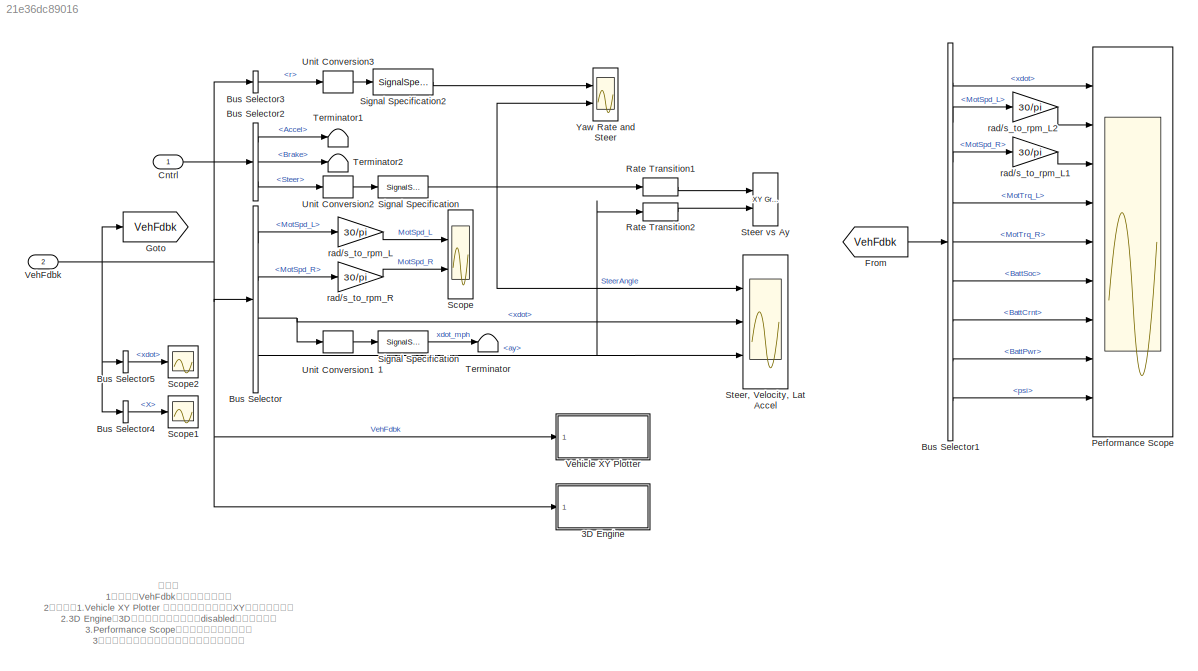
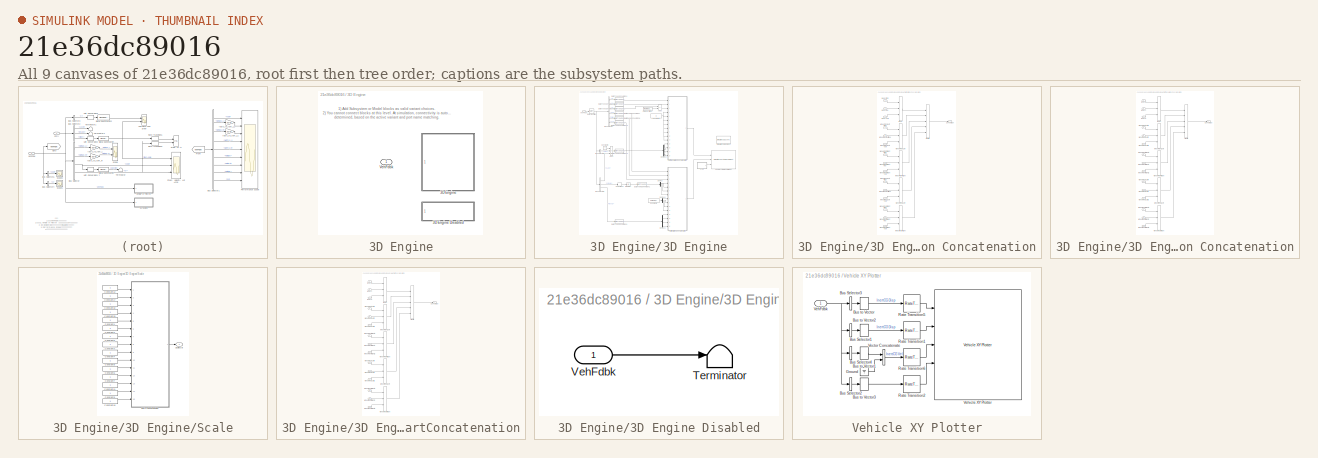
[diagram: thumbnail index - all 9 canvases of the model, root first then tree order]
MODEL slx_21e36dc89016
KIND model
CONFIG AbsTol = auto
CONFIG EnableMultiTasking = off
CONFIG FixedStep = auto
CONFIG MaxStep = auto
CONFIG MinStep = auto
CONFIG RelTol = 1e-3
CONFIG SampleTimeConstraint = Unconstrained
CONFIG Solver = VariableStepAuto
CONFIG SolverName = VariableStepAuto
CONFIG StartTime = 0.0
CONFIG StopTime = 10.0
WORKSPACE source: mxarray member
WORKSPACE VEH: object (value not decoded)
BLOCK [SubSystem] 3D Engine
  AttributesFormatString = %<engine3D>
  LabelModeActiveChoice = 0
  Ports = [1]
  RequestExecContextInheritance = off
  Variant = on
  VariantControlMode = Label
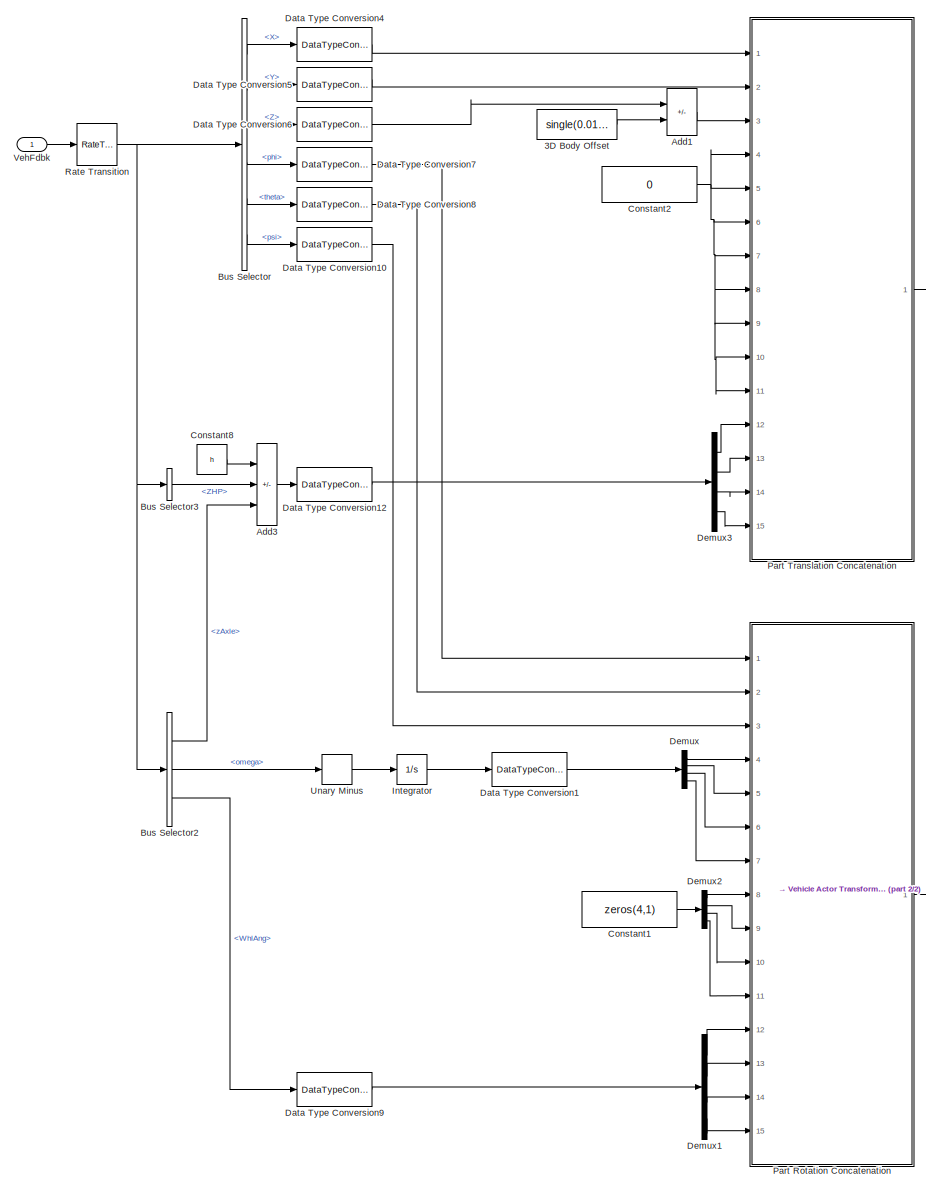
[diagram: 3D Engine/3D Engine - part 1/2, center side, full height]
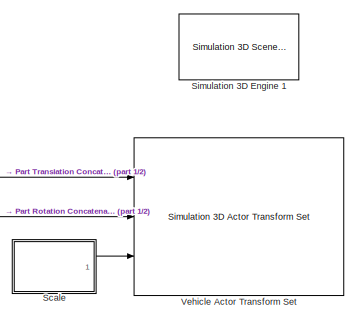
[diagram: 3D Engine/3D Engine - part 2/2, middle right region]
BLOCK [SubSystem] 3D Engine/3D Engine
  Ports = [1]
  RequestExecContextInheritance = off
  VariantControl = 1
BLOCK [SubSystem] 3D Engine/3D Engine Disabled
  Ports = [1]
  RequestExecContextInheritance = off
  VariantControl = 0
BLOCK [Terminator] 3D Engine/3D Engine Disabled/Terminator
BLOCK [Inport] 3D Engine/3D Engine Disabled/VehFdbk
BLOCK [Constant] 3D Engine/3D Engine/3D Body Offset
  OutDataTypeStr = single
  Value = single(0.0112)
BLOCK [Sum] 3D Engine/3D Engine/Add1
  IconShape = rectangular
  Inputs = -+
  Ports = [2, 1]
BLOCK [Sum] 3D Engine/3D Engine/Add3
  IconShape = rectangular
  Inputs = -+-
  Ports = [3, 1]
BLOCK [BusSelector] 3D Engine/3D Engine/Bus Selector
  OutputSignals = Body.X,Body.Y,Body.Z,Body.phi,Body.theta,Body.psi
  Ports = [1, 6]
BLOCK [BusSelector] 3D Engine/3D Engine/Bus Selector2
  OutputSignals = Wheels.zAxle,Wheels.omega,Driveline.WhlAng
  Ports = [1, 3]
BLOCK [BusSelector] 3D Engine/3D Engine/Bus Selector3
  OutputSignals = Body.ZHP
  Ports = [1, 1]
BLOCK [Constant] 3D Engine/3D Engine/Constant1
  OutDataTypeStr = single
  Value = zeros(4,1)
BLOCK [Constant] 3D Engine/3D Engine/Constant2
  OutDataTypeStr = single
  Value = 0
BLOCK [Constant] 3D Engine/3D Engine/Constant8
  Value = h
BLOCK [DataTypeConversion] 3D Engine/3D Engine/Data Type Conversion1
  OutDataTypeStr = single
  RndMeth = Floor
  SaturateOnIntegerOverflow = off
BLOCK [DataTypeConversion] 3D Engine/3D Engine/Data Type Conversion10
  OutDataTypeStr = single
  RndMeth = Floor
  SaturateOnIntegerOverflow = off
BLOCK [DataTypeConversion] 3D Engine/3D Engine/Data Type Conversion12
  OutDataTypeStr = single
  RndMeth = Floor
  SaturateOnIntegerOverflow = off
BLOCK [DataTypeConversion] 3D Engine/3D Engine/Data Type Conversion4
  OutDataTypeStr = single
  RndMeth = Floor
  SaturateOnIntegerOverflow = off
BLOCK [DataTypeConversion] 3D Engine/3D Engine/Data Type Conversion5
  OutDataTypeStr = single
  RndMeth = Floor
  SaturateOnIntegerOverflow = off
BLOCK [DataTypeConversion] 3D Engine/3D Engine/Data Type Conversion6
  OutDataTypeStr = single
  RndMeth = Floor
  SaturateOnIntegerOverflow = off
BLOCK [DataTypeConversion] 3D Engine/3D Engine/Data Type Conversion7
  OutDataTypeStr = single
  RndMeth = Floor
  SaturateOnIntegerOverflow = off
BLOCK [DataTypeConversion] 3D Engine/3D Engine/Data Type Conversion8
  OutDataTypeStr = single
  RndMeth = Floor
  SaturateOnIntegerOverflow = off
BLOCK [DataTypeConversion] 3D Engine/3D Engine/Data Type Conversion9
  OutDataTypeStr = single
  RndMeth = Floor
  SaturateOnIntegerOverflow = off
BLOCK [Demux] 3D Engine/3D Engine/Demux
  Ports = [1, 4]
BLOCK [Demux] 3D Engine/3D Engine/Demux1
  Ports = [1, 4]
BLOCK [Demux] 3D Engine/3D Engine/Demux2
  Ports = [1, 4]
BLOCK [Demux] 3D Engine/3D Engine/Demux3
  Ports = [1, 4]
BLOCK [Integrator] 3D Engine/3D Engine/Integrator
  Ports = [1, 1]
  WrapState = on
  WrappedStateLowerValue = 0
  WrappedStateUpperValue = 2*pi
  ZeroCross = off
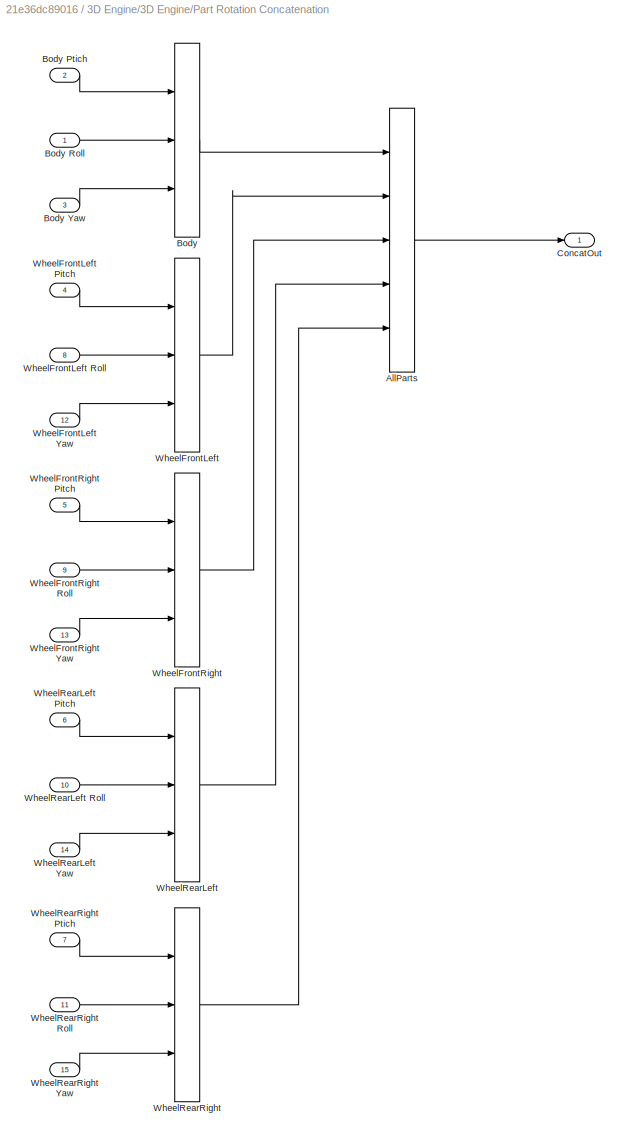
BLOCK [SubSystem] 3D Engine/3D Engine/Part Rotation Concatenation
  Ports = [15, 1]
  RequestExecContextInheritance = off
BLOCK [Concatenate] 3D Engine/3D Engine/Part Rotation Concatenation/AllParts
  Mode = Multidimensional array
  NumInputs = 5
  Ports = [5, 1]
BLOCK [Concatenate] 3D Engine/3D Engine/Part Rotation Concatenation/Body
  ConcatenateDimension = 2
  Mode = Multidimensional array
  NumInputs = 3
  Ports = [3, 1]
BLOCK [Inport] 3D Engine/3D Engine/Part Rotation Concatenation/Body Ptich
  Port = 2
BLOCK [Inport] 3D Engine/3D Engine/Part Rotation Concatenation/Body Roll
BLOCK [Inport] 3D Engine/3D Engine/Part Rotation Concatenation/Body Yaw
  Port = 3
BLOCK [Outport] 3D Engine/3D Engine/Part Rotation Concatenation/ConcatOut
  VectorParamsAs1DForOutWhenUnconnected = off
BLOCK [Concatenate] 3D Engine/3D Engine/Part Rotation Concatenation/WheelFrontLeft
  ConcatenateDimension = 2
  Mode = Multidimensional array
  NumInputs = 3
  Ports = [3, 1]
BLOCK [Inport] 3D Engine/3D Engine/Part Rotation Concatenation/WheelFrontLeft Pitch
  Port = 4
BLOCK [Inport] 3D Engine/3D Engine/Part Rotation Concatenation/WheelFrontLeft Roll
  Port = 8
BLOCK [Inport] 3D Engine/3D Engine/Part Rotation Concatenation/WheelFrontLeft Yaw
  Port = 12
BLOCK [Concatenate] 3D Engine/3D Engine/Part Rotation Concatenation/WheelFrontRight
  ConcatenateDimension = 2
  Mode = Multidimensional array
  NumInputs = 3
  Ports = [3, 1]
BLOCK [Inport] 3D Engine/3D Engine/Part Rotation Concatenation/WheelFrontRight Pitch
  Port = 5
BLOCK [Inport] 3D Engine/3D Engine/Part Rotation Concatenation/WheelFrontRight Roll
  Port = 9
BLOCK [Inport] 3D Engine/3D Engine/Part Rotation Concatenation/WheelFrontRight Yaw
  Port = 13
BLOCK [Concatenate] 3D Engine/3D Engine/Part Rotation Concatenation/WheelRearLeft
  ConcatenateDimension = 2
  Mode = Multidimensional array
  NumInputs = 3
  Ports = [3, 1]
BLOCK [Inport] 3D Engine/3D Engine/Part Rotation Concatenation/WheelRearLeft Pitch
  Port = 6
BLOCK [Inport] 3D Engine/3D Engine/Part Rotation Concatenation/WheelRearLeft Roll
  Port = 10
BLOCK [Inport] 3D Engine/3D Engine/Part Rotation Concatenation/WheelRearLeft Yaw
  Port = 14
BLOCK [Concatenate] 3D Engine/3D Engine/Part Rotation Concatenation/WheelRearRight
  ConcatenateDimension = 2
  Mode = Multidimensional array
  NumInputs = 3
  Ports = [3, 1]
BLOCK [Inport] 3D Engine/3D Engine/Part Rotation Concatenation/WheelRearRight Ptich
  Port = 7
BLOCK [Inport] 3D Engine/3D Engine/Part Rotation Concatenation/WheelRearRight Roll
  Port = 11
BLOCK [Inport] 3D Engine/3D Engine/Part Rotation Concatenation/WheelRearRight Yaw
  Port = 15
BLOCK [SubSystem] 3D Engine/3D Engine/Part Translation Concatenation
  Ports = [15, 1]
  RequestExecContextInheritance = off
BLOCK [Concatenate] 3D Engine/3D Engine/Part Translation Concatenation/AllParts
  Mode = Multidimensional array
  NumInputs = 5
  Ports = [5, 1]
BLOCK [Concatenate] 3D Engine/3D Engine/Part Translation Concatenation/Body
  ConcatenateDimension = 2
  Mode = Multidimensional array
  NumInputs = 3
  Ports = [3, 1]
BLOCK [Inport] 3D Engine/3D Engine/Part Translation Concatenation/BodyX
BLOCK [Inport] 3D Engine/3D Engine/Part Translation Concatenation/BodyY
  Port = 2
BLOCK [Inport] 3D Engine/3D Engine/Part Translation Concatenation/BodyZ
  Port = 3
BLOCK [Outport] 3D Engine/3D Engine/Part Translation Concatenation/ConcatOut
  VectorParamsAs1DForOutWhenUnconnected = off
BLOCK [Concatenate] 3D Engine/3D Engine/Part Translation Concatenation/WheelFrontLeft
  ConcatenateDimension = 2
  Mode = Multidimensional array
  NumInputs = 3
  Ports = [3, 1]
BLOCK [Inport] 3D Engine/3D Engine/Part Translation Concatenation/WheelFrontLeftX
  Port = 4
BLOCK [Inport] 3D Engine/3D Engine/Part Translation Concatenation/WheelFrontLeftY
  Port = 8
BLOCK [Inport] 3D Engine/3D Engine/Part Translation Concatenation/WheelFrontLeftZ
  Port = 12
BLOCK [Concatenate] 3D Engine/3D Engine/Part Translation Concatenation/WheelFrontRight
  ConcatenateDimension = 2
  Mode = Multidimensional array
  NumInputs = 3
  Ports = [3, 1]
BLOCK [Inport] 3D Engine/3D Engine/Part Translation Concatenation/WheelFrontRightX
  Port = 5
BLOCK [Inport] 3D Engine/3D Engine/Part Translation Concatenation/WheelFrontRightY
  Port = 9
BLOCK [Inport] 3D Engine/3D Engine/Part Translation Concatenation/WheelFrontRightZ
  Port = 13
BLOCK [Concatenate] 3D Engine/3D Engine/Part Translation Concatenation/WheelRearLeft
  ConcatenateDimension = 2
  Mode = Multidimensional array
  NumInputs = 3
  Ports = [3, 1]
BLOCK [Inport] 3D Engine/3D Engine/Part Translation Concatenation/WheelRearLeftX
  Port = 6
BLOCK [Inport] 3D Engine/3D Engine/Part Translation Concatenation/WheelRearLeftY
  Port = 10
BLOCK [Inport] 3D Engine/3D Engine/Part Translation Concatenation/WheelRearLeftZ
  Port = 14
BLOCK [Concatenate] 3D Engine/3D Engine/Part Translation Concatenation/WheelRearRight
  ConcatenateDimension = 2
  Mode = Multidimensional array
  NumInputs = 3
  Ports = [3, 1]
BLOCK [Inport] 3D Engine/3D Engine/Part Translation Concatenation/WheelRearRightX
  Port = 7
BLOCK [Inport] 3D Engine/3D Engine/Part Translation Concatenation/WheelRearRightY
  Port = 11
BLOCK [Inport] 3D Engine/3D Engine/Part Translation Concatenation/WheelRearRightZ
  Port = 15
BLOCK [RateTransition] 3D Engine/3D Engine/Rate Transition
  OutPortSampleTime = dt3D
BLOCK [SubSystem] 3D Engine/3D Engine/Scale
  Ports = [0, 1]
  RequestExecContextInheritance = off
BLOCK [Constant] 3D Engine/3D Engine/Scale/Constant1
  OutDataTypeStr = single
BLOCK [Constant] 3D Engine/3D Engine/Scale/Constant10
  OutDataTypeStr = single
BLOCK [Constant] 3D Engine/3D Engine/Scale/Constant11
  OutDataTypeStr = single
BLOCK [Constant] 3D Engine/3D Engine/Scale/Constant12
  OutDataTypeStr = single
BLOCK [Constant] 3D Engine/3D Engine/Scale/Constant17
  OutDataTypeStr = single
BLOCK [Constant] 3D Engine/3D Engine/Scale/Constant2
  OutDataTypeStr = single
BLOCK [Constant] 3D Engine/3D Engine/Scale/Constant3
  OutDataTypeStr = single
BLOCK [Constant] 3D Engine/3D Engine/Scale/Constant32
  OutDataTypeStr = single
BLOCK [Constant] 3D Engine/3D Engine/Scale/Constant33
  OutDataTypeStr = single
BLOCK [Constant] 3D Engine/3D Engine/Scale/Constant4
  OutDataTypeStr = single
BLOCK [Constant] 3D Engine/3D Engine/Scale/Constant5
  OutDataTypeStr = single
BLOCK [Constant] 3D Engine/3D Engine/Scale/Constant6
  OutDataTypeStr = single
BLOCK [Constant] 3D Engine/3D Engine/Scale/Constant7
  OutDataTypeStr = single
BLOCK [Constant] 3D Engine/3D Engine/Scale/Constant8
  OutDataTypeStr = single
BLOCK [Constant] 3D Engine/3D Engine/Scale/Constant9
  OutDataTypeStr = single
BLOCK [SubSystem] 3D Engine/3D Engine/Scale/PartConcatenation
  Ports = [15, 1]
  RequestExecContextInheritance = off
BLOCK [Concatenate] 3D Engine/3D Engine/Scale/PartConcatenation/AllParts
  Mode = Multidimensional array
  NumInputs = 5
  Ports = [5, 1]
BLOCK [Concatenate] 3D Engine/3D Engine/Scale/PartConcatenation/Body
  ConcatenateDimension = 2
  Mode = Multidimensional array
  NumInputs = 3
  Ports = [3, 1]
BLOCK [Inport] 3D Engine/3D Engine/Scale/PartConcatenation/BodyX
BLOCK [Inport] 3D Engine/3D Engine/Scale/PartConcatenation/BodyY
  Port = 2
BLOCK [Inport] 3D Engine/3D Engine/Scale/PartConcatenation/BodyZ
  Port = 3
BLOCK [Outport] 3D Engine/3D Engine/Scale/PartConcatenation/ConcatOut
  VectorParamsAs1DForOutWhenUnconnected = off
BLOCK [Concatenate] 3D Engine/3D Engine/Scale/PartConcatenation/WheelFrontLeft
  ConcatenateDimension = 2
  Mode = Multidimensional array
  NumInputs = 3
  Ports = [3, 1]
BLOCK [Inport] 3D Engine/3D Engine/Scale/PartConcatenation/WheelFrontLeftX
  Port = 4
BLOCK [Inport] 3D Engine/3D Engine/Scale/PartConcatenation/WheelFrontLeftY
  Port = 5
BLOCK [Inport] 3D Engine/3D Engine/Scale/PartConcatenation/WheelFrontLeftZ
  Port = 6
BLOCK [Concatenate] 3D Engine/3D Engine/Scale/PartConcatenation/WheelFrontRight
  ConcatenateDimension = 2
  Mode = Multidimensional array
  NumInputs = 3
  Ports = [3, 1]
BLOCK [Inport] 3D Engine/3D Engine/Scale/PartConcatenation/WheelFrontRightX
  Port = 7
BLOCK [Inport] 3D Engine/3D Engine/Scale/PartConcatenation/WheelFrontRightY
  Port = 8
BLOCK [Inport] 3D Engine/3D Engine/Scale/PartConcatenation/WheelFrontRightZ
  Port = 9
BLOCK [Concatenate] 3D Engine/3D Engine/Scale/PartConcatenation/WheelRearLeft
  ConcatenateDimension = 2
  Mode = Multidimensional array
  NumInputs = 3
  Ports = [3, 1]
BLOCK [Inport] 3D Engine/3D Engine/Scale/PartConcatenation/WheelRearLeftX
  Port = 10
BLOCK [Inport] 3D Engine/3D Engine/Scale/PartConcatenation/WheelRearLeftY
  Port = 11
BLOCK [Inport] 3D Engine/3D Engine/Scale/PartConcatenation/WheelRearLeftZ
  Port = 12
BLOCK [Concatenate] 3D Engine/3D Engine/Scale/PartConcatenation/WheelRearRight
  ConcatenateDimension = 2
  Mode = Multidimensional array
  NumInputs = 3
  Ports = [3, 1]
BLOCK [Inport] 3D Engine/3D Engine/Scale/PartConcatenation/WheelRearRightX
  Port = 13
BLOCK [Inport] 3D Engine/3D Engine/Scale/PartConcatenation/WheelRearRightY
  Port = 14
BLOCK [Inport] 3D Engine/3D Engine/Scale/PartConcatenation/WheelRearRightZ
  Port = 15
BLOCK [Outport] 3D Engine/3D Engine/Scale/ScaleOut
  VectorParamsAs1DForOutWhenUnconnected = off
BLOCK [Reference] 3D Engine/3D Engine/Simulation 3D Engine 1  REF=sim3dlib/Simulation 3D Scene Configuration
  AttributesFormatString = Priority: %<Priority>
  Ports = []
  Priority = 1
  SourceBlock = sim3dlib/Simulation 3D Scene Configuration
  SourceProductBaseCode = DR,VE
  SourceType = Simulation 3D Scene Configuration
BLOCK [UnaryMinus] 3D Engine/3D Engine/Unary Minus
BLOCK [Inport] 3D Engine/3D Engine/VehFdbk
BLOCK [Reference] 3D Engine/3D Engine/Vehicle Actor Transform Set  REF=sim3dlib/Simulation 3D Actor Transform Set
  Ports = [3]
  SourceBlock = sim3dlib/Simulation 3D Actor Transform Set
  SourceProductBaseCode = DR,VE
  SourceType = Transform Set
BLOCK [Inport] 3D Engine/VehFdbk
BLOCK [BusSelector] Bus Selector
  OutputSignals = MotSpd_L,MotSpd_R,Body.xdot,Body.ay
  Ports = [1, 4]
BLOCK [BusSelector] Bus Selector1
  OutputSignals = Body.xdot,MotSpd_L,MotSpd_R,ElecFdbk.MotTrq_L,ElecFdbk.MotTrq_R,ElecFdbk.BattSoc,ElecFdbk.BattCrnt,ElecFdbk.BattPwr,Body.psi
  Ports = [1, 9]
BLOCK [BusSelector] Bus Selector2
  OutputSignals = Accel,Brake,Steer
  Ports = [1, 3]
BLOCK [BusSelector] Bus Selector3
  OutputSignals = Body.r
  Ports = [1, 1]
BLOCK [BusSelector] Bus Selector4
  OutputSignals = Body.X
  Ports = [1, 1]
BLOCK [BusSelector] Bus Selector5
  OutputSignals = Body.xdot
  Ports = [1, 1]
BLOCK [Inport] Cntrl
BLOCK [From] From
  GotoTag = VehFdbk
BLOCK [Goto] Goto
  GotoTag = VehFdbk
BLOCK [Scope] Performance Scope
  Floating = off
  NumInputPorts = 9
  Ports = [9]
  ScopeSpecificationString = Simulink.scopes.TimeScopeBlockCfg('CurrentConfiguration', extmgr.ConfigurationSet(extmgr.Configuration('Core','General UI',true),extmgr.Configuration('Core','Source UI',true),extmgr.Configuration('Sources','WiredSimulink',true,'SampleTime','0.1','DataLoggingVariableName','ScopeData1'),extmgr.Configuration('Visuals','Time Domain',true,'SerializedDisplays',{struct('MinYLimReal','-2.64016','MaxYLimRe...<+6979ch>
BLOCK [RateTransition] Rate Transition1
  OutPortSampleTime = .1
BLOCK [RateTransition] Rate Transition2
  OutPortSampleTime = .1
BLOCK [Scope] Scope
  Floating = off
  NumInputPorts = 2
  Ports = [2]
  ScopeSpecificationString = Simulink.scopes.TimeScopeBlockCfg('CurrentConfiguration', extmgr.ConfigurationSet(extmgr.Configuration('Core','General UI',true),extmgr.Configuration('Core','Source UI',true),extmgr.Configuration('Sources','WiredSimulink',true,'DataLoggingVariableName','ScopeData2'),extmgr.Configuration('Visuals','Time Domain',true,'SerializedDisplays',{struct('MinYLimReal','-434.66126','MaxYLimReal','3911.89718',...<+1471ch>
BLOCK [Scope] Scope1
  Floating = off
  NumInputPorts = 1
  Ports = [1]
  ScopeSpecificationString = Simulink.scopes.TimeScopeBlockCfg('CurrentConfiguration', extmgr.ConfigurationSet(extmgr.Configuration('Core','General UI',true),extmgr.Configuration('Core','Source UI',true),extmgr.Configuration('Sources','WiredSimulink',true,'DataLoggingVariableName','ScopeData3'),extmgr.Configuration('Visuals','Time Domain',true,'SerializedDisplays',{struct('MinYLimReal','-3.80251','MaxYLimReal','34.22257','YLa...<+1410ch>
BLOCK [Scope] Scope2
  Floating = off
  NumInputPorts = 1
  Ports = [1]
  ScopeSpecificationString = Simulink.scopes.TimeScopeBlockCfg('CurrentConfiguration', extmgr.ConfigurationSet(extmgr.Configuration('Core','General UI',true),extmgr.Configuration('Core','Source UI',true),extmgr.Configuration('Sources','WiredSimulink',true,'DataLoggingVariableName','ScopeData4'),extmgr.Configuration('Visuals','Time Domain',true,'SerializedDisplays',{struct('MinYLimReal','-5.3036','MaxYLimReal','47.7324','YLabe...<+1407ch>
BLOCK [SignalSpecification] Signal Specification
  Unit = deg
BLOCK [SignalSpecification] Signal Specification1
  Unit = mph
BLOCK [SignalSpecification] Signal Specification2
  Unit = deg/s
BLOCK [Reference] Steer vs Ay  REF=simulink/Sinks/XY Graph
  Commented = on
  Ports = [2]
  SourceBlock = simulink/Sinks/XY Graph
  SourceProductBaseCode = SL
  SourceType = XY scope.
BLOCK [Scope] Steer, Velocity, Lat Accel
  Floating = off
  NumInputPorts = 3
  Ports = [3]
  ScopeSpecificationString = Simulink.scopes.TimeScopeBlockCfg('CurrentConfiguration', extmgr.ConfigurationSet(extmgr.Configuration('Core','General UI',true),extmgr.Configuration('Core','Source UI',true),extmgr.Configuration('Sources','WiredSimulink',true,'DataLoggingVariableName','ScopeData5'),extmgr.Configuration('Visuals','Time Domain',true,'SerializedDisplays',{struct('MinYLimReal','-128.7','MaxYLimReal','128.7','YLabelRe...<+2696ch>
BLOCK [Terminator] Terminator
BLOCK [Terminator] Terminator1
BLOCK [Terminator] Terminator2
BLOCK [UnitConversion] Unit Conversion1
BLOCK [UnitConversion] Unit Conversion2
BLOCK [UnitConversion] Unit Conversion3
BLOCK [Inport] VehFdbk
  Port = 2
BLOCK [SubSystem] Vehicle XY Plotter
  Ports = [1]
  RequestExecContextInheritance = off
BLOCK [BusSelector] Vehicle XY Plotter/Bus Selector1
  OutputAsBus = on
  OutputSignals = Body.phi,Body.theta,Body.psi
  Ports = [1, 1]
BLOCK [BusSelector] Vehicle XY Plotter/Bus Selector2
  OutputAsBus = on
  OutputSignals = Driveline.WhlAng
  Ports = [1, 1]
BLOCK [BusSelector] Vehicle XY Plotter/Bus Selector3
  OutputAsBus = on
  OutputSignals = Body.X,Body.Y,Body.Z
  Ports = [1, 1]
BLOCK [BusSelector] Vehicle XY Plotter/Bus Selector4
  OutputAsBus = on
  OutputSignals = Body.Xdot,Body.Ydot
  Ports = [1, 1]
BLOCK [BusToVector] Vehicle XY Plotter/Bus to Vector
BLOCK [BusToVector] Vehicle XY Plotter/Bus to Vector1
BLOCK [BusToVector] Vehicle XY Plotter/Bus to Vector2
BLOCK [BusToVector] Vehicle XY Plotter/Bus to Vector3
BLOCK [Ground] Vehicle XY Plotter/Ground
BLOCK [RateTransition] Vehicle XY Plotter/Rate Transition1
  OutPortSampleTime = pltDT
BLOCK [RateTransition] Vehicle XY Plotter/Rate Transition2
  OutPortSampleTime = pltDT
BLOCK [RateTransition] Vehicle XY Plotter/Rate Transition5
  OutPortSampleTime = pltDT
BLOCK [RateTransition] Vehicle XY Plotter/Rate Transition6
  OutPortSampleTime = pltDT
BLOCK [Concatenate] Vehicle XY Plotter/Vector Concatenate
  Ports = [2, 1]
BLOCK [Inport] Vehicle XY Plotter/VehFdbk
BLOCK [Reference] Vehicle XY Plotter/Vehicle XY Plotter  REF=vehdynlibviscommon/Vehicle XY Plotter
  Ports = [5]
  SourceBlock = vehdynlibviscommon/Vehicle XY Plotter
  SourceProductBaseCode = VE
  SourceType = Vehicle XY Plotter
BLOCK [Scope] Yaw Rate and Steer
  Floating = off
  NumInputPorts = 2
  Ports = [2]
  ScopeSpecificationString = Simulink.scopes.TimeScopeBlockCfg('CurrentConfiguration', extmgr.ConfigurationSet(extmgr.Configuration('Core','General UI',true),extmgr.Configuration('Core','Source UI',true),extmgr.Configuration('Sources','WiredSimulink',true),extmgr.Configuration('Visuals','Time Domain',true,'SerializedDisplays',{struct('MinYLimReal','-177.51894','MaxYLimReal','113.09901','YLabelReal','','MinYLimMag',' 0.00000',...<+2023ch>
BLOCK [Gain] rad//s_to_rpm_L
  Gain = 30/pi
BLOCK [Gain] rad//s_to_rpm_L1
  Gain = 30/pi
BLOCK [Gain] rad//s_to_rpm_L2
  Gain = 30/pi
BLOCK [Gain] rad//s_to_rpm_R
  Gain = 30/pi
ANNOTATION (root): 注释： 1）输入：VehFdbk整车仿真变量反馈 2）结果：1.Vehicle XY Plotter 为可画出车辆仿真运动XY平面轨迹的模块 2.3D Engine为3D显示模块，不使用可以disabled以免占用内存 3.Performance Scope为仿真主要参数显示模块 3）另外的变量显示可自行添加示波器等进行显示
ANNOTATION 3D Engine: 1) Add Subsystem or Model blocks as valid variant choices. 2) You cannot connect blocks at this level. At simulation, connectivity is automatically determined, based on the active variant and port name matching.
LINE 3D Engine/3D Engine Disabled/VehFdbk:1 -> 3D Engine/3D Engine Disabled/Terminator:1
LINE 3D Engine/3D Engine/3D Body Offset:1 -> 3D Engine/3D Engine/Add1:2
LINE 3D Engine/3D Engine/Add1:1 -> 3D Engine/3D Engine/Part Translation Concatenation:3
LINE 3D Engine/3D Engine/Add3:1 -> 3D Engine/3D Engine/Data Type Conversion12:1
LINE 3D Engine/3D Engine/Bus Selector2:1 -> 3D Engine/3D Engine/Add3:3
LINE 3D Engine/3D Engine/Bus Selector2:2 -> 3D Engine/3D Engine/Unary Minus:1
LINE 3D Engine/3D Engine/Bus Selector2:3 -> 3D Engine/3D Engine/Data Type Conversion9:1
LINE 3D Engine/3D Engine/Bus Selector3:1 -> 3D Engine/3D Engine/Add3:2
LINE 3D Engine/3D Engine/Bus Selector:1 -> 3D Engine/3D Engine/Data Type Conversion4:1
LINE 3D Engine/3D Engine/Bus Selector:2 -> 3D Engine/3D Engine/Data Type Conversion5:1
LINE 3D Engine/3D Engine/Bus Selector:3 -> 3D Engine/3D Engine/Data Type Conversion6:1
LINE 3D Engine/3D Engine/Bus Selector:4 -> 3D Engine/3D Engine/Data Type Conversion7:1
LINE 3D Engine/3D Engine/Bus Selector:5 -> 3D Engine/3D Engine/Data Type Conversion8:1
LINE 3D Engine/3D Engine/Bus Selector:6 -> 3D Engine/3D Engine/Data Type Conversion10:1
LINE 3D Engine/3D Engine/Constant1:1 -> 3D Engine/3D Engine/Demux2:1
NET 3D Engine/3D Engine/Constant2:1 -> 3D Engine/3D Engine/Part Translation Concatenation:10, 3D Engine/3D Engine/Part Translation Concatenation:11, 3D Engine/3D Engine/Part Translation Concatenation:4, 3D Engine/3D Engine/Part Translation Concatenation:5, 3D Engine/3D Engine/Part Translation Concatenation:6, 3D Engine/3D Engine/Part Translation Concatenation:7, 3D Engine/3D Engine/Part Translation Concatenation:8, 3D Engine/3D Engine/Part Translation Concatenation:9
LINE 3D Engine/3D Engine/Constant8:1 -> 3D Engine/3D Engine/Add3:1
LINE 3D Engine/3D Engine/Data Type Conversion10:1 -> 3D Engine/3D Engine/Part Rotation Concatenation:3
LINE 3D Engine/3D Engine/Data Type Conversion12:1 -> 3D Engine/3D Engine/Demux3:1
LINE 3D Engine/3D Engine/Data Type Conversion1:1 -> 3D Engine/3D Engine/Demux:1
LINE 3D Engine/3D Engine/Data Type Conversion4:1 -> 3D Engine/3D Engine/Part Translation Concatenation:1
LINE 3D Engine/3D Engine/Data Type Conversion5:1 -> 3D Engine/3D Engine/Part Translation Concatenation:2
LINE 3D Engine/3D Engine/Data Type Conversion6:1 -> 3D Engine/3D Engine/Add1:1
LINE 3D Engine/3D Engine/Data Type Conversion7:1 -> 3D Engine/3D Engine/Part Rotation Concatenation:1
LINE 3D Engine/3D Engine/Data Type Conversion8:1 -> 3D Engine/3D Engine/Part Rotation Concatenation:2
LINE 3D Engine/3D Engine/Data Type Conversion9:1 -> 3D Engine/3D Engine/Demux1:1
LINE 3D Engine/3D Engine/Demux1:1 -> 3D Engine/3D Engine/Part Rotation Concatenation:12
LINE 3D Engine/3D Engine/Demux1:2 -> 3D Engine/3D Engine/Part Rotation Concatenation:13
LINE 3D Engine/3D Engine/Demux1:3 -> 3D Engine/3D Engine/Part Rotation Concatenation:14
LINE 3D Engine/3D Engine/Demux1:4 -> 3D Engine/3D Engine/Part Rotation Concatenation:15
LINE 3D Engine/3D Engine/Demux2:1 -> 3D Engine/3D Engine/Part Rotation Concatenation:8
LINE 3D Engine/3D Engine/Demux2:2 -> 3D Engine/3D Engine/Part Rotation Concatenation:9
LINE 3D Engine/3D Engine/Demux2:3 -> 3D Engine/3D Engine/Part Rotation Concatenation:10
LINE 3D Engine/3D Engine/Demux2:4 -> 3D Engine/3D Engine/Part Rotation Concatenation:11
LINE 3D Engine/3D Engine/Demux3:1 -> 3D Engine/3D Engine/Part Translation Concatenation:12
LINE 3D Engine/3D Engine/Demux3:2 -> 3D Engine/3D Engine/Part Translation Concatenation:13
LINE 3D Engine/3D Engine/Demux3:3 -> 3D Engine/3D Engine/Part Translation Concatenation:14
LINE 3D Engine/3D Engine/Demux3:4 -> 3D Engine/3D Engine/Part Translation Concatenation:15
LINE 3D Engine/3D Engine/Demux:1 -> 3D Engine/3D Engine/Part Rotation Concatenation:4
LINE 3D Engine/3D Engine/Demux:2 -> 3D Engine/3D Engine/Part Rotation Concatenation:5
LINE 3D Engine/3D Engine/Demux:3 -> 3D Engine/3D Engine/Part Rotation Concatenation:6
LINE 3D Engine/3D Engine/Demux:4 -> 3D Engine/3D Engine/Part Rotation Concatenation:7
LINE 3D Engine/3D Engine/Integrator:1 -> 3D Engine/3D Engine/Data Type Conversion1:1
LINE 3D Engine/3D Engine/Part Rotation Concatenation/AllParts:1 -> 3D Engine/3D Engine/Part Rotation Concatenation/ConcatOut:1
LINE 3D Engine/3D Engine/Part Rotation Concatenation/Body Ptich:1 -> 3D Engine/3D Engine/Part Rotation Concatenation/Body:1
LINE 3D Engine/3D Engine/Part Rotation Concatenation/Body Roll:1 -> 3D Engine/3D Engine/Part Rotation Concatenation/Body:2
LINE 3D Engine/3D Engine/Part Rotation Concatenation/Body Yaw:1 -> 3D Engine/3D Engine/Part Rotation Concatenation/Body:3
LINE 3D Engine/3D Engine/Part Rotation Concatenation/Body:1 -> 3D Engine/3D Engine/Part Rotation Concatenation/AllParts:1
LINE 3D Engine/3D Engine/Part Rotation Concatenation/WheelFrontLeft Pitch:1 -> 3D Engine/3D Engine/Part Rotation Concatenation/WheelFrontLeft:1
LINE 3D Engine/3D Engine/Part Rotation Concatenation/WheelFrontLeft Roll:1 -> 3D Engine/3D Engine/Part Rotation Concatenation/WheelFrontLeft:2
LINE 3D Engine/3D Engine/Part Rotation Concatenation/WheelFrontLeft Yaw:1 -> 3D Engine/3D Engine/Part Rotation Concatenation/WheelFrontLeft:3
LINE 3D Engine/3D Engine/Part Rotation Concatenation/WheelFrontLeft:1 -> 3D Engine/3D Engine/Part Rotation Concatenation/AllParts:2
LINE 3D Engine/3D Engine/Part Rotation Concatenation/WheelFrontRight Pitch:1 -> 3D Engine/3D Engine/Part Rotation Concatenation/WheelFrontRight:1
LINE 3D Engine/3D Engine/Part Rotation Concatenation/WheelFrontRight Roll:1 -> 3D Engine/3D Engine/Part Rotation Concatenation/WheelFrontRight:2
LINE 3D Engine/3D Engine/Part Rotation Concatenation/WheelFrontRight Yaw:1 -> 3D Engine/3D Engine/Part Rotation Concatenation/WheelFrontRight:3
LINE 3D Engine/3D Engine/Part Rotation Concatenation/WheelFrontRight:1 -> 3D Engine/3D Engine/Part Rotation Concatenation/AllParts:3
LINE 3D Engine/3D Engine/Part Rotation Concatenation/WheelRearLeft Pitch:1 -> 3D Engine/3D Engine/Part Rotation Concatenation/WheelRearLeft:1
LINE 3D Engine/3D Engine/Part Rotation Concatenation/WheelRearLeft Roll:1 -> 3D Engine/3D Engine/Part Rotation Concatenation/WheelRearLeft:2
LINE 3D Engine/3D Engine/Part Rotation Concatenation/WheelRearLeft Yaw:1 -> 3D Engine/3D Engine/Part Rotation Concatenation/WheelRearLeft:3
LINE 3D Engine/3D Engine/Part Rotation Concatenation/WheelRearLeft:1 -> 3D Engine/3D Engine/Part Rotation Concatenation/AllParts:4
LINE 3D Engine/3D Engine/Part Rotation Concatenation/WheelRearRight Ptich:1 -> 3D Engine/3D Engine/Part Rotation Concatenation/WheelRearRight:1
LINE 3D Engine/3D Engine/Part Rotation Concatenation/WheelRearRight Roll:1 -> 3D Engine/3D Engine/Part Rotation Concatenation/WheelRearRight:2
LINE 3D Engine/3D Engine/Part Rotation Concatenation/WheelRearRight Yaw:1 -> 3D Engine/3D Engine/Part Rotation Concatenation/WheelRearRight:3
LINE 3D Engine/3D Engine/Part Rotation Concatenation/WheelRearRight:1 -> 3D Engine/3D Engine/Part Rotation Concatenation/AllParts:5
LINE 3D Engine/3D Engine/Part Rotation Concatenation:1 -> 3D Engine/3D Engine/Vehicle Actor Transform Set:2
LINE 3D Engine/3D Engine/Part Translation Concatenation/AllParts:1 -> 3D Engine/3D Engine/Part Translation Concatenation/ConcatOut:1
LINE 3D Engine/3D Engine/Part Translation Concatenation/Body:1 -> 3D Engine/3D Engine/Part Translation Concatenation/AllParts:1
LINE 3D Engine/3D Engine/Part Translation Concatenation/BodyX:1 -> 3D Engine/3D Engine/Part Translation Concatenation/Body:1
LINE 3D Engine/3D Engine/Part Translation Concatenation/BodyY:1 -> 3D Engine/3D Engine/Part Translation Concatenation/Body:2
LINE 3D Engine/3D Engine/Part Translation Concatenation/BodyZ:1 -> 3D Engine/3D Engine/Part Translation Concatenation/Body:3
LINE 3D Engine/3D Engine/Part Translation Concatenation/WheelFrontLeft:1 -> 3D Engine/3D Engine/Part Translation Concatenation/AllParts:2
LINE 3D Engine/3D Engine/Part Translation Concatenation/WheelFrontLeftX:1 -> 3D Engine/3D Engine/Part Translation Concatenation/WheelFrontLeft:1
LINE 3D Engine/3D Engine/Part Translation Concatenation/WheelFrontLeftY:1 -> 3D Engine/3D Engine/Part Translation Concatenation/WheelFrontLeft:2
LINE 3D Engine/3D Engine/Part Translation Concatenation/WheelFrontLeftZ:1 -> 3D Engine/3D Engine/Part Translation Concatenation/WheelFrontLeft:3
LINE 3D Engine/3D Engine/Part Translation Concatenation/WheelFrontRight:1 -> 3D Engine/3D Engine/Part Translation Concatenation/AllParts:3
LINE 3D Engine/3D Engine/Part Translation Concatenation/WheelFrontRightX:1 -> 3D Engine/3D Engine/Part Translation Concatenation/WheelFrontRight:1
LINE 3D Engine/3D Engine/Part Translation Concatenation/WheelFrontRightY:1 -> 3D Engine/3D Engine/Part Translation Concatenation/WheelFrontRight:2
LINE 3D Engine/3D Engine/Part Translation Concatenation/WheelFrontRightZ:1 -> 3D Engine/3D Engine/Part Translation Concatenation/WheelFrontRight:3
LINE 3D Engine/3D Engine/Part Translation Concatenation/WheelRearLeft:1 -> 3D Engine/3D Engine/Part Translation Concatenation/AllParts:4
LINE 3D Engine/3D Engine/Part Translation Concatenation/WheelRearLeftX:1 -> 3D Engine/3D Engine/Part Translation Concatenation/WheelRearLeft:1
LINE 3D Engine/3D Engine/Part Translation Concatenation/WheelRearLeftY:1 -> 3D Engine/3D Engine/Part Translation Concatenation/WheelRearLeft:2
LINE 3D Engine/3D Engine/Part Translation Concatenation/WheelRearLeftZ:1 -> 3D Engine/3D Engine/Part Translation Concatenation/WheelRearLeft:3
LINE 3D Engine/3D Engine/Part Translation Concatenation/WheelRearRight:1 -> 3D Engine/3D Engine/Part Translation Concatenation/AllParts:5
LINE 3D Engine/3D Engine/Part Translation Concatenation/WheelRearRightX:1 -> 3D Engine/3D Engine/Part Translation Concatenation/WheelRearRight:1
LINE 3D Engine/3D Engine/Part Translation Concatenation/WheelRearRightY:1 -> 3D Engine/3D Engine/Part Translation Concatenation/WheelRearRight:2
LINE 3D Engine/3D Engine/Part Translation Concatenation/WheelRearRightZ:1 -> 3D Engine/3D Engine/Part Translation Concatenation/WheelRearRight:3
LINE 3D Engine/3D Engine/Part Translation Concatenation:1 -> 3D Engine/3D Engine/Vehicle Actor Transform Set:1
NET 3D Engine/3D Engine/Rate Transition:1 -> 3D Engine/3D Engine/Bus Selector2:1, 3D Engine/3D Engine/Bus Selector3:1, 3D Engine/3D Engine/Bus Selector:1
LINE 3D Engine/3D Engine/Scale/Constant10:1 -> 3D Engine/3D Engine/Scale/PartConcatenation:15
LINE 3D Engine/3D Engine/Scale/Constant11:1 -> 3D Engine/3D Engine/Scale/PartConcatenation:13
LINE 3D Engine/3D Engine/Scale/Constant12:1 -> 3D Engine/3D Engine/Scale/PartConcatenation:1
LINE 3D Engine/3D Engine/Scale/Constant17:1 -> 3D Engine/3D Engine/Scale/PartConcatenation:2
LINE 3D Engine/3D Engine/Scale/Constant1:1 -> 3D Engine/3D Engine/Scale/PartConcatenation:5
LINE 3D Engine/3D Engine/Scale/Constant2:1 -> 3D Engine/3D Engine/Scale/PartConcatenation:6
LINE 3D Engine/3D Engine/Scale/Constant32:1 -> 3D Engine/3D Engine/Scale/PartConcatenation:3
LINE 3D Engine/3D Engine/Scale/Constant33:1 -> 3D Engine/3D Engine/Scale/PartConcatenation:4
LINE 3D Engine/3D Engine/Scale/Constant3:1 -> 3D Engine/3D Engine/Scale/PartConcatenation:8
LINE 3D Engine/3D Engine/Scale/Constant4:1 -> 3D Engine/3D Engine/Scale/PartConcatenation:9
LINE 3D Engine/3D Engine/Scale/Constant5:1 -> 3D Engine/3D Engine/Scale/PartConcatenation:7
LINE 3D Engine/3D Engine/Scale/Constant6:1 -> 3D Engine/3D Engine/Scale/PartConcatenation:11
LINE 3D Engine/3D Engine/Scale/Constant7:1 -> 3D Engine/3D Engine/Scale/PartConcatenation:12
LINE 3D Engine/3D Engine/Scale/Constant8:1 -> 3D Engine/3D Engine/Scale/PartConcatenation:10
LINE 3D Engine/3D Engine/Scale/Constant9:1 -> 3D Engine/3D Engine/Scale/PartConcatenation:14
LINE 3D Engine/3D Engine/Scale/PartConcatenation/AllParts:1 -> 3D Engine/3D Engine/Scale/PartConcatenation/ConcatOut:1
LINE 3D Engine/3D Engine/Scale/PartConcatenation/Body:1 -> 3D Engine/3D Engine/Scale/PartConcatenation/AllParts:1
LINE 3D Engine/3D Engine/Scale/PartConcatenation/BodyX:1 -> 3D Engine/3D Engine/Scale/PartConcatenation/Body:1
LINE 3D Engine/3D Engine/Scale/PartConcatenation/BodyY:1 -> 3D Engine/3D Engine/Scale/PartConcatenation/Body:2
LINE 3D Engine/3D Engine/Scale/PartConcatenation/BodyZ:1 -> 3D Engine/3D Engine/Scale/PartConcatenation/Body:3
LINE 3D Engine/3D Engine/Scale/PartConcatenation/WheelFrontLeft:1 -> 3D Engine/3D Engine/Scale/PartConcatenation/AllParts:2
LINE 3D Engine/3D Engine/Scale/PartConcatenation/WheelFrontLeftX:1 -> 3D Engine/3D Engine/Scale/PartConcatenation/WheelFrontLeft:1
LINE 3D Engine/3D Engine/Scale/PartConcatenation/WheelFrontLeftY:1 -> 3D Engine/3D Engine/Scale/PartConcatenation/WheelFrontLeft:2
LINE 3D Engine/3D Engine/Scale/PartConcatenation/WheelFrontLeftZ:1 -> 3D Engine/3D Engine/Scale/PartConcatenation/WheelFrontLeft:3
LINE 3D Engine/3D Engine/Scale/PartConcatenation/WheelFrontRight:1 -> 3D Engine/3D Engine/Scale/PartConcatenation/AllParts:3
LINE 3D Engine/3D Engine/Scale/PartConcatenation/WheelFrontRightX:1 -> 3D Engine/3D Engine/Scale/PartConcatenation/WheelFrontRight:1
LINE 3D Engine/3D Engine/Scale/PartConcatenation/WheelFrontRightY:1 -> 3D Engine/3D Engine/Scale/PartConcatenation/WheelFrontRight:2
LINE 3D Engine/3D Engine/Scale/PartConcatenation/WheelFrontRightZ:1 -> 3D Engine/3D Engine/Scale/PartConcatenation/WheelFrontRight:3
LINE 3D Engine/3D Engine/Scale/PartConcatenation/WheelRearLeft:1 -> 3D Engine/3D Engine/Scale/PartConcatenation/AllParts:4
LINE 3D Engine/3D Engine/Scale/PartConcatenation/WheelRearLeftX:1 -> 3D Engine/3D Engine/Scale/PartConcatenation/WheelRearLeft:1
LINE 3D Engine/3D Engine/Scale/PartConcatenation/WheelRearLeftY:1 -> 3D Engine/3D Engine/Scale/PartConcatenation/WheelRearLeft:2
LINE 3D Engine/3D Engine/Scale/PartConcatenation/WheelRearLeftZ:1 -> 3D Engine/3D Engine/Scale/PartConcatenation/WheelRearLeft:3
LINE 3D Engine/3D Engine/Scale/PartConcatenation/WheelRearRight:1 -> 3D Engine/3D Engine/Scale/PartConcatenation/AllParts:5
LINE 3D Engine/3D Engine/Scale/PartConcatenation/WheelRearRightX:1 -> 3D Engine/3D Engine/Scale/PartConcatenation/WheelRearRight:1
LINE 3D Engine/3D Engine/Scale/PartConcatenation/WheelRearRightY:1 -> 3D Engine/3D Engine/Scale/PartConcatenation/WheelRearRight:2
LINE 3D Engine/3D Engine/Scale/PartConcatenation/WheelRearRightZ:1 -> 3D Engine/3D Engine/Scale/PartConcatenation/WheelRearRight:3
LINE 3D Engine/3D Engine/Scale/PartConcatenation:1 -> 3D Engine/3D Engine/Scale/ScaleOut:1
LINE 3D Engine/3D Engine/Scale:1 -> 3D Engine/3D Engine/Vehicle Actor Transform Set:3
LINE 3D Engine/3D Engine/Unary Minus:1 -> 3D Engine/3D Engine/Integrator:1
LINE 3D Engine/3D Engine/VehFdbk:1 -> 3D Engine/3D Engine/Rate Transition:1
LINE Bus Selector1:1 -> Performance Scope:1
LINE Bus Selector1:2 -> rad//s_to_rpm_L2:1
LINE Bus Selector1:3 -> rad//s_to_rpm_L1:1
LINE Bus Selector1:4 -> Performance Scope:4
LINE Bus Selector1:5 -> Performance Scope:5
LINE Bus Selector1:6 -> Performance Scope:6
LINE Bus Selector1:7 -> Performance Scope:7
LINE Bus Selector1:8 -> Performance Scope:8
LINE Bus Selector1:9 -> Performance Scope:9
LINE Bus Selector2:1 -> Terminator1:1
LINE Bus Selector2:2 -> Terminator2:1
LINE Bus Selector2:3 -> Unit Conversion2:1
LINE Bus Selector3:1 -> Unit Conversion3:1
LINE Bus Selector4:1 -> Scope1:1
LINE Bus Selector5:1 -> Scope2:1
LINE Bus Selector:1 -> rad//s_to_rpm_L:1
LINE Bus Selector:2 -> rad//s_to_rpm_R:1
NET Bus Selector:3 -> Steer, Velocity, Lat Accel:2, Unit Conversion1:1
NET Bus Selector:4 -> Rate Transition2:1, Steer, Velocity, Lat Accel:3
LINE Cntrl:1 -> Bus Selector2:1
LINE From:1 -> Bus Selector1:1
LINE Rate Transition1:1 -> Steer vs Ay:1
LINE Rate Transition2:1 -> Steer vs Ay:2
LINE Signal Specification1:1 -> Terminator:1
LINE Signal Specification2:1 -> Yaw Rate and Steer:1
NET Signal Specification:1 -> Rate Transition1:1, Steer, Velocity, Lat Accel:1, Yaw Rate and Steer:2
LINE Unit Conversion1:1 -> Signal Specification1:1
LINE Unit Conversion2:1 -> Signal Specification:1
LINE Unit Conversion3:1 -> Signal Specification2:1
NET VehFdbk:1 -> 3D Engine:1, Bus Selector3:1, Bus Selector4:1, Bus Selector5:1, Bus Selector:1, Goto:1, Vehicle XY Plotter:1
LINE Vehicle XY Plotter/Bus Selector1:1 -> Vehicle XY Plotter/Bus to Vector2:1
LINE Vehicle XY Plotter/Bus Selector2:1 -> Vehicle XY Plotter/Bus to Vector3:1
LINE Vehicle XY Plotter/Bus Selector3:1 -> Vehicle XY Plotter/Bus to Vector:1
LINE Vehicle XY Plotter/Bus Selector4:1 -> Vehicle XY Plotter/Bus to Vector1:1
LINE Vehicle XY Plotter/Bus to Vector1:1 -> Vehicle XY Plotter/Vector Concatenate:1
LINE Vehicle XY Plotter/Bus to Vector2:1 -> Vehicle XY Plotter/Rate Transition1:1
LINE Vehicle XY Plotter/Bus to Vector3:1 -> Vehicle XY Plotter/Rate Transition2:1
LINE Vehicle XY Plotter/Bus to Vector:1 -> Vehicle XY Plotter/Rate Transition5:1
LINE Vehicle XY Plotter/Ground:1 -> Vehicle XY Plotter/Vector Concatenate:2
LINE Vehicle XY Plotter/Rate Transition1:1 -> Vehicle XY Plotter/Vehicle XY Plotter:2
LINE Vehicle XY Plotter/Rate Transition2:1 -> Vehicle XY Plotter/Vehicle XY Plotter:4
LINE Vehicle XY Plotter/Rate Transition5:1 -> Vehicle XY Plotter/Vehicle XY Plotter:1
LINE Vehicle XY Plotter/Rate Transition6:1 -> Vehicle XY Plotter/Vehicle XY Plotter:3
LINE Vehicle XY Plotter/Vector Concatenate:1 -> Vehicle XY Plotter/Rate Transition6:1
NET Vehicle XY Plotter/VehFdbk:1 -> Vehicle XY Plotter/Bus Selector1:1, Vehicle XY Plotter/Bus Selector2:1, Vehicle XY Plotter/Bus Selector3:1, Vehicle XY Plotter/Bus Selector4:1
LINE rad//s_to_rpm_L1:1 -> Performance Scope:3
LINE rad//s_to_rpm_L2:1 -> Performance Scope:2
LINE rad//s_to_rpm_L:1 -> Scope:1
LINE rad//s_to_rpm_R:1 -> Scope:2
note: NET lines group one-source signal fan-out (src -> all destinations, sorted); 1:1 wires keep LINE
